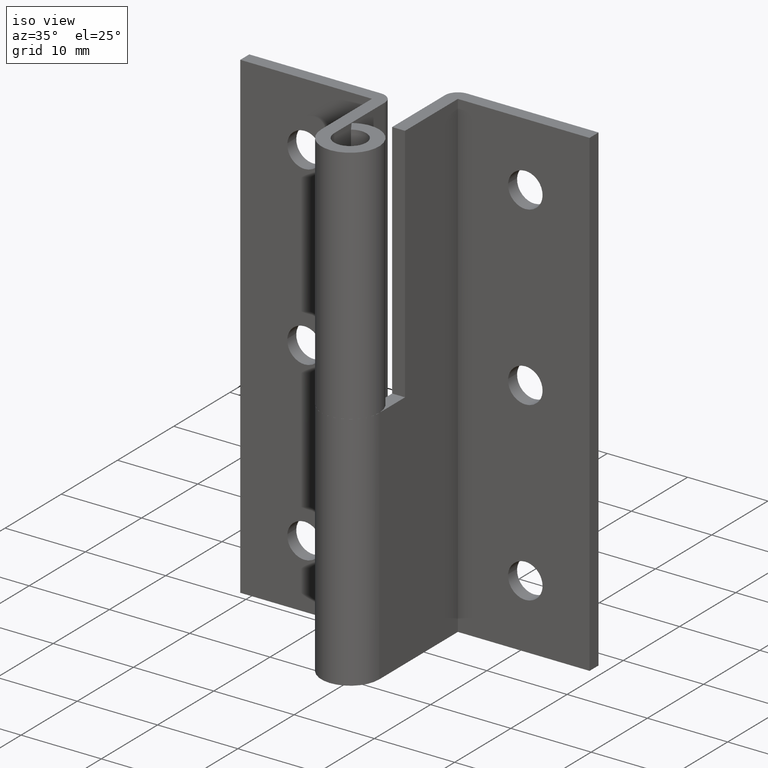
[diagram: clean part render]
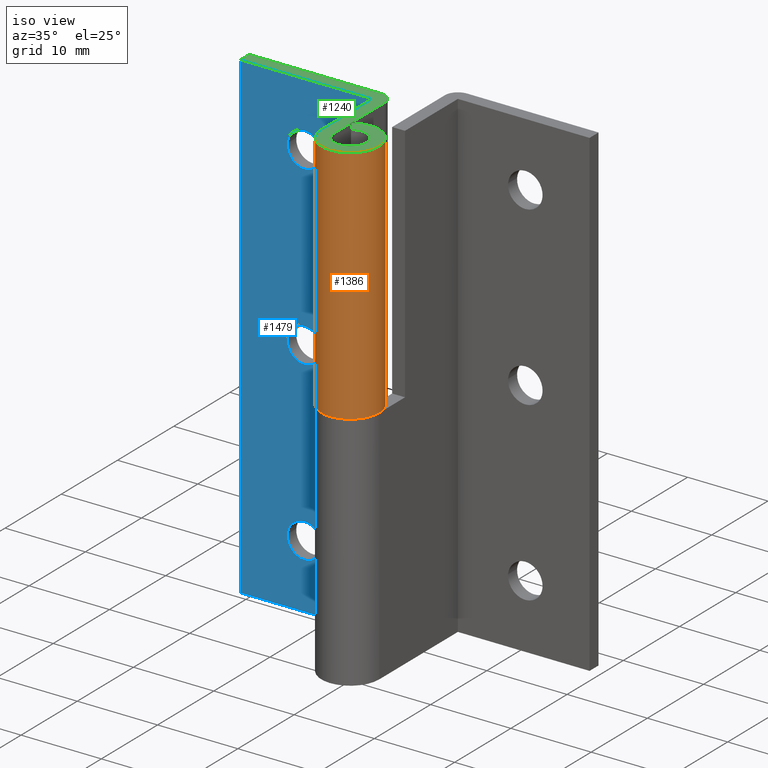
[diagram: same view with three faces highlighted in distinct colors, each labeled with its STEP entity id]
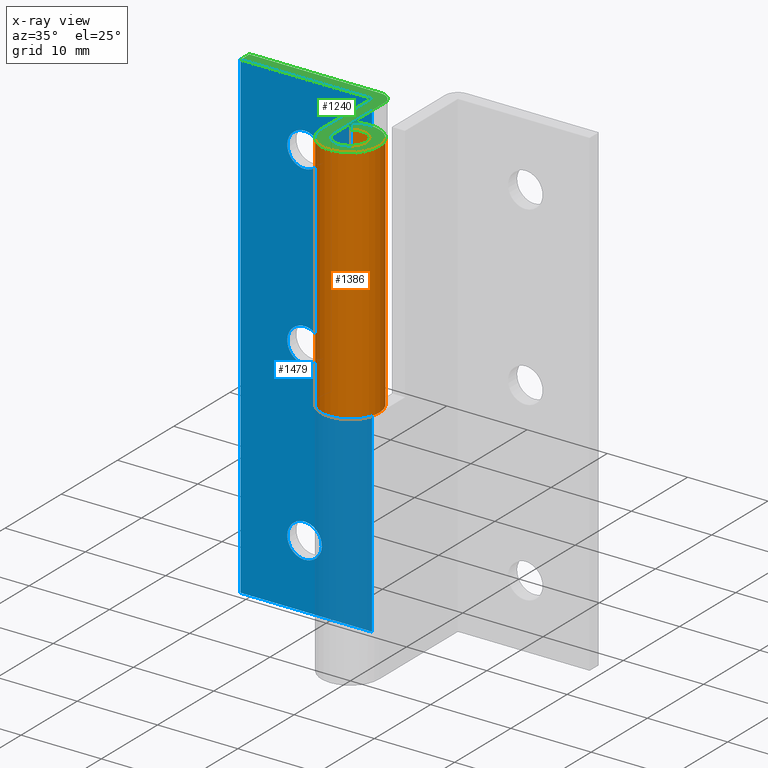
[diagram: x-ray of the same camera — body ghosted, the three highlighted faces saturated]
A machine part, iso view with three faces highlighted in distinct colors.
The next image is the same camera in x-ray (body ghosted, the three faces saturated) — at least one of them is partly hidden behind the body in this view.
Their STEP definitions:

[orange] entity #1386 — the highlighted face is a freeform B-spline surface patch.
#1113=CARTESIAN_POINT('',(-1.949999999999900,3.026136150274865,29.999992000000049));
#1114=VERTEX_POINT('',#1113);
#1120=CARTESIAN_POINT('',(-3.599998000000000,-0.003794732665980,29.999991999999999));
#1121=VERTEX_POINT('',#1120);
#1122=CARTESIAN_POINT('',(-3.599997999999999,-0.003794732665980,29.999992000000049));
#1123=CARTESIAN_POINT('',(-3.597050035456123,-2.800478292793362,29.999992000000052));
#1124=CARTESIAN_POINT('',(-0.886481411687195,-3.489147561616315,29.999992000000049));
#1125=CARTESIAN_POINT('',(1.824087212081733,-4.177816830439268,29.999992000000052));
#1126=CARTESIAN_POINT('',(3.161603981976616,-1.721702721479410,29.999992000000049));
#1127=CARTESIAN_POINT('',(4.499120751871498,0.734411387480448,29.999992000000052));
#1128=CARTESIAN_POINT('',(2.449997865370639,2.637709320542980,29.999992000000049));
#1129=CARTESIAN_POINT('',(0.400874978869779,4.541007253605512,29.999992000000052));
#1130=CARTESIAN_POINT('',(-1.949999999999900,3.026136150274867,29.999992000000049));
#1138=(BOUNDED_CURVE()B_SPLINE_CURVE(2,(#1122,#1123,#1124,#1125,#1126,#1127,#1128,#1129,#1130),.UNSPECIFIED.,.F.,.U.)B_SPLINE_CURVE_WITH_KNOTS((3,2,2,2,3),(0.0,0.250000000000000,0.500000000000000,0.750000000000000,1.0),.UNSPECIFIED.)CURVE()GEOMETRIC_REPRESENTATION_ITEM()RATIONAL_B_SPLINE_CURVE((1.0,0.789704480868730,1.0,0.789704480868730,1.0,0.789704480868730,1.0,0.789704480868730,1.0))REPRESENTATION_ITEM(''));
#1139=EDGE_CURVE('',#1121,#1114,#1138,.T.);
#1184=CARTESIAN_POINT('',(-3.599998000000000,-0.003794732665980,59.999991999999999));
#1185=VERTEX_POINT('',#1184);
#1191=CARTESIAN_POINT('',(-1.949999999999900,3.026136150274865,59.999991999999999));
#1192=VERTEX_POINT('',#1191);
#1193=CARTESIAN_POINT('',(-3.599997999999999,-0.003794732665980,59.999991999999999));
#1194=CARTESIAN_POINT('',(-3.597050035456123,-2.800478292793362,59.999991999999999));
#1195=CARTESIAN_POINT('',(-0.886481411687195,-3.489147561616315,59.999991999999999));
#1196=CARTESIAN_POINT('',(1.824087212081733,-4.177816830439268,59.999991999999999));
#1197=CARTESIAN_POINT('',(3.161603981976616,-1.721702721479410,59.999991999999999));
#1198=CARTESIAN_POINT('',(4.499120751871498,0.734411387480448,59.999991999999999));
#1199=CARTESIAN_POINT('',(2.449997865370639,2.637709320542980,59.999991999999999));
#1200=CARTESIAN_POINT('',(0.400874978869779,4.541007253605512,59.999991999999999));
#1201=CARTESIAN_POINT('',(-1.949999999999900,3.026136150274867,59.999991999999999));
#1209=(BOUNDED_CURVE()B_SPLINE_CURVE(2,(#1193,#1194,#1195,#1196,#1197,#1198,#1199,#1200,#1201),.UNSPECIFIED.,.F.,.U.)B_SPLINE_CURVE_WITH_KNOTS((3,2,2,2,3),(0.0,0.250000000000000,0.500000000000000,0.750000000000000,1.0),.UNSPECIFIED.)CURVE()GEOMETRIC_REPRESENTATION_ITEM()RATIONAL_B_SPLINE_CURVE((1.0,0.789704480868730,1.0,0.789704480868730,1.0,0.789704480868730,1.0,0.789704480868730,1.0))REPRESENTATION_ITEM(''));
#1210=EDGE_CURVE('',#1185,#1192,#1209,.T.);
#1338=CARTESIAN_POINT('',(-3.599998000000000,-0.003794732665980,29.999991999999999));
#1339=CARTESIAN_POINT('',(-3.599998000000000,-0.003794732665980,59.999991999999999));
#1340=QUASI_UNIFORM_CURVE('',1,(#1338,#1339),.UNSPECIFIED.,.F.,.U.);
#1341=EDGE_CURVE('',#1121,#1185,#1340,.T.);
#1354=CARTESIAN_POINT('',(-2.080142237043605,2.938198133834276,29.249991999999999));
#1355=CARTESIAN_POINT('',(-2.080142237043605,2.938198133834276,60.768742000000003));
#1356=CARTESIAN_POINT('',(1.591704313728566,5.537737970937335,29.249992000000006));
#1357=CARTESIAN_POINT('',(1.591704313728566,5.537737970937335,60.768741999999996));
#1358=CARTESIAN_POINT('',(3.322819818743821,1.385232273722813,29.249991999999999));
#1359=CARTESIAN_POINT('',(3.322819818743821,1.385232273722813,60.768742000000003));
#1360=CARTESIAN_POINT('',(5.053935323759077,-2.767273423491711,29.249992000000006));
#1361=CARTESIAN_POINT('',(5.053935323759077,-2.767273423491711,60.768741999999996));
#1362=CARTESIAN_POINT('',(0.622895520486722,-3.545701788159514,29.249991999999999));
#1363=CARTESIAN_POINT('',(0.622895520486722,-3.545701788159514,60.768742000000003));
#1364=CARTESIAN_POINT('',(-3.808144282785634,-4.324130152827316,29.249992000000006));
#1365=CARTESIAN_POINT('',(-3.808144282785634,-4.324130152827316,60.768741999999996));
#1366=CARTESIAN_POINT('',(-3.595995164234094,0.169760946053597,29.249991999999999));
#1367=CARTESIAN_POINT('',(-3.595995164234094,0.169760946053597,60.768742000000003));
#1375=(BOUNDED_SURFACE()B_SPLINE_SURFACE(1,2,((#1354,#1356,#1358,#1360,#1362,#1364,#1366),(#1355,#1357,#1359,#1361,#1363,#1365,#1367)),.UNSPECIFIED.,.F.,.F.,.U.)B_SPLINE_SURFACE_WITH_KNOTS((2,2),(3,2,2,3),(0.0,31.518750000000011),(0.0,6.919936892402060,13.839873784804119,20.759810677206179),.UNSPECIFIED.)GEOMETRIC_REPRESENTATION_ITEM()RATIONAL_B_SPLINE_SURFACE(((1.0,0.624788514543960,1.0,0.624788514543960,1.0,0.624788514543960,1.0),(1.0,0.624788514543960,1.0,0.624788514543960,1.0,0.624788514543960,1.0)))REPRESENTATION_ITEM('')SURFACE());
#1376=ORIENTED_EDGE('',*,*,#1341,.F.);
#1377=ORIENTED_EDGE('',*,*,#1139,.T.);
#1378=CARTESIAN_POINT('',(-1.949999999999900,3.026136150274865,29.999992000000049));
#1379=CARTESIAN_POINT('',(-1.949999999999900,3.026136150274865,59.999991999999999));
#1380=QUASI_UNIFORM_CURVE('',1,(#1378,#1379),.UNSPECIFIED.,.F.,.U.);
#1381=EDGE_CURVE('',#1114,#1192,#1380,.T.);
#1382=ORIENTED_EDGE('',*,*,#1381,.T.);
#1383=ORIENTED_EDGE('',*,*,#1210,.F.);
#1384=EDGE_LOOP('',(#1376,#1377,#1382,#1383));
#1385=FACE_OUTER_BOUND('',#1384,.T.);
#1386=ADVANCED_FACE('',(#1385),#1375,.T.);

[blue] entity #1479 — the highlighted face is a freeform B-spline surface patch.
#489=CARTESIAN_POINT('',(-9.856627732478707,9.0,51.831304944122479));
#490=VERTEX_POINT('',#489);
#496=CARTESIAN_POINT('',(-12.0,9.0,54.149991999999997));
#497=VERTEX_POINT('',#496);
#498=CARTESIAN_POINT('',(-9.856627732478707,9.0,51.831304944122479));
#499=CARTESIAN_POINT('',(-9.850000000000001,9.0,51.915518269870567));
#500=CARTESIAN_POINT('',(-9.850000000000001,9.0,51.999991999999999));
#501=CARTESIAN_POINT('',(-9.850000000000001,9.0,54.149991999999997));
#502=CARTESIAN_POINT('',(-12.0,9.0,54.149991999999997));
#510=(BOUNDED_CURVE()B_SPLINE_CURVE(2,(#498,#499,#500,#501,#502),.UNSPECIFIED.,.F.,.U.)B_SPLINE_CURVE_WITH_KNOTS((3,2,3),(0.736331300622745,0.750000000000000,1.0),.UNSPECIFIED.)CURVE()GEOMETRIC_REPRESENTATION_ITEM()RATIONAL_B_SPLINE_CURVE((0.969723356150901,0.983986122569610,1.0,0.707106781186547,1.0))REPRESENTATION_ITEM(''));
#511=EDGE_CURVE('',#490,#497,#510,.T.);
#513=CARTESIAN_POINT('',(-14.143372267521290,9.0,52.168679055877519));
#514=VERTEX_POINT('',#513);
#515=CARTESIAN_POINT('',(-12.0,9.0,54.149991999999997));
#516=CARTESIAN_POINT('',(-13.987439556948601,9.000000000000002,54.149992000000005));
#517=CARTESIAN_POINT('',(-14.143372267521293,9.0,52.168679055877519));
#525=(BOUNDED_CURVE()B_SPLINE_CURVE(2,(#515,#516,#517),.UNSPECIFIED.,.F.,.U.)B_SPLINE_CURVE_WITH_KNOTS((3,3),(0.0,0.236331300622745),.UNSPECIFIED.)CURVE()GEOMETRIC_REPRESENTATION_ITEM()RATIONAL_B_SPLINE_CURVE((1.0,0.723120658616938,0.969723356150901))REPRESENTATION_ITEM(''));
#526=EDGE_CURVE('',#497,#514,#525,.T.);
#572=CARTESIAN_POINT('',(-12.0,9.0,49.849992000000000));
#573=VERTEX_POINT('',#572);
#574=CARTESIAN_POINT('',(-14.143372267521293,9.0,52.168679055877519));
#575=CARTESIAN_POINT('',(-14.150000000000000,9.0,52.084465730129430));
#576=CARTESIAN_POINT('',(-14.150000000000000,9.0,51.999991999999999));
#577=CARTESIAN_POINT('',(-14.150000000000006,9.0,49.849992000000000));
#578=CARTESIAN_POINT('',(-12.0,9.0,49.849992000000000));
#586=(BOUNDED_CURVE()B_SPLINE_CURVE(2,(#574,#575,#576,#577,#578),.UNSPECIFIED.,.F.,.U.)B_SPLINE_CURVE_WITH_KNOTS((3,2,3),(0.236331300622745,0.250000000000000,0.500000000000000),.UNSPECIFIED.)CURVE()GEOMETRIC_REPRESENTATION_ITEM()RATIONAL_B_SPLINE_CURVE((0.969723356150901,0.983986122569610,1.0,0.707106781186547,1.0))REPRESENTATION_ITEM(''));
#587=EDGE_CURVE('',#514,#573,#586,.T.);
#589=CARTESIAN_POINT('',(-12.0,9.0,49.849992000000000));
#590=CARTESIAN_POINT('',(-10.012560443051404,9.000000000000002,49.849991999999993));
#591=CARTESIAN_POINT('',(-9.856627732478707,9.0,51.831304944122493));
#599=(BOUNDED_CURVE()B_SPLINE_CURVE(2,(#589,#590,#591),.UNSPECIFIED.,.F.,.U.)B_SPLINE_CURVE_WITH_KNOTS((3,3),(0.500000000000000,0.736331300622745),.UNSPECIFIED.)CURVE()GEOMETRIC_REPRESENTATION_ITEM()RATIONAL_B_SPLINE_CURVE((1.0,0.723120658616938,0.969723356150901))REPRESENTATION_ITEM(''));
#600=EDGE_CURVE('',#573,#490,#599,.T.);
#671=CARTESIAN_POINT('',(-9.856627732478707,9.0,29.831304944122479));
#672=VERTEX_POINT('',#671);
#678=CARTESIAN_POINT('',(-12.0,9.0,32.149992000000012));
#679=VERTEX_POINT('',#678);
#680=CARTESIAN_POINT('',(-9.856627732478707,9.0,29.831304944122476));
#681=CARTESIAN_POINT('',(-9.850000000000001,8.999999999999998,29.915518269870564));
#682=CARTESIAN_POINT('',(-9.850000000000001,9.0,29.999991999999999));
#683=CARTESIAN_POINT('',(-9.850000000000001,9.0,32.149991999999997));
#684=CARTESIAN_POINT('',(-12.0,9.0,32.149992000000012));
#692=(BOUNDED_CURVE()B_SPLINE_CURVE(2,(#680,#681,#682,#683,#684),.UNSPECIFIED.,.F.,.U.)B_SPLINE_CURVE_WITH_KNOTS((3,2,3),(0.736331300622745,0.750000000000000,1.0),.UNSPECIFIED.)CURVE()GEOMETRIC_REPRESENTATION_ITEM()RATIONAL_B_SPLINE_CURVE((0.969723356150902,0.983986122569610,1.0,0.707106781186547,1.0))REPRESENTATION_ITEM(''));
#693=EDGE_CURVE('',#672,#679,#692,.T.);
#695=CARTESIAN_POINT('',(-14.143372267521290,9.0,30.168679055877512));
#696=VERTEX_POINT('',#695);
#697=CARTESIAN_POINT('',(-12.0,9.0,32.149992000000012));
#698=CARTESIAN_POINT('',(-13.987439556948599,9.0,32.149992000000005));
#699=CARTESIAN_POINT('',(-14.143372267521290,9.0,30.168679055877512));
#707=(BOUNDED_CURVE()B_SPLINE_CURVE(2,(#697,#698,#699),.UNSPECIFIED.,.F.,.U.)B_SPLINE_CURVE_WITH_KNOTS((3,3),(0.0,0.236331300622746),.UNSPECIFIED.)CURVE()GEOMETRIC_REPRESENTATION_ITEM()RATIONAL_B_SPLINE_CURVE((1.0,0.723120658616937,0.969723356150902))REPRESENTATION_ITEM(''));
#708=EDGE_CURVE('',#679,#696,#707,.T.);
#754=CARTESIAN_POINT('',(-12.0,9.0,27.849992000000000));
#755=VERTEX_POINT('',#754);
#756=CARTESIAN_POINT('',(-14.143372267521295,9.0,30.168679055877512));
#757=CARTESIAN_POINT('',(-14.150000000000002,8.999999999999998,30.084465730129427));
#758=CARTESIAN_POINT('',(-14.150000000000000,9.0,29.999991999999999));
#759=CARTESIAN_POINT('',(-14.150000000000006,9.0,27.849992000000007));
#760=CARTESIAN_POINT('',(-12.0,9.0,27.849992000000000));
#768=(BOUNDED_CURVE()B_SPLINE_CURVE(2,(#756,#757,#758,#759,#760),.UNSPECIFIED.,.F.,.U.)B_SPLINE_CURVE_WITH_KNOTS((3,2,3),(0.236331300622746,0.250000000000000,0.500000000000000),.UNSPECIFIED.)CURVE()GEOMETRIC_REPRESENTATION_ITEM()RATIONAL_B_SPLINE_CURVE((0.969723356150902,0.983986122569610,1.0,0.707106781186547,1.0))REPRESENTATION_ITEM(''));
#769=EDGE_CURVE('',#696,#755,#768,.T.);
#771=CARTESIAN_POINT('',(-12.0,9.0,27.849992000000000));
#772=CARTESIAN_POINT('',(-10.012560443051404,9.000000000000002,27.849992000000000));
#773=CARTESIAN_POINT('',(-9.856627732478707,9.0,29.831304944122476));
#781=(BOUNDED_CURVE()B_SPLINE_CURVE(2,(#771,#772,#773),.UNSPECIFIED.,.F.,.U.)B_SPLINE_CURVE_WITH_KNOTS((3,3),(0.500000000000000,0.736331300622745),.UNSPECIFIED.)CURVE()GEOMETRIC_REPRESENTATION_ITEM()RATIONAL_B_SPLINE_CURVE((1.0,0.723120658616938,0.969723356150901))REPRESENTATION_ITEM(''));
#782=EDGE_CURVE('',#755,#672,#781,.T.);
#853=CARTESIAN_POINT('',(-9.856627732478707,9.0,7.831312944122485));
#854=VERTEX_POINT('',#853);
#860=CARTESIAN_POINT('',(-12.0,9.0,10.150000000000000));
#861=VERTEX_POINT('',#860);
#862=CARTESIAN_POINT('',(-9.856627732478707,9.0,7.831312944122485));
#863=CARTESIAN_POINT('',(-9.850000000000003,9.000000000000002,7.915526269870572));
#864=CARTESIAN_POINT('',(-9.850000000000001,9.0,8.0));
#865=CARTESIAN_POINT('',(-9.850000000000001,9.0,10.149999999999999));
#866=CARTESIAN_POINT('',(-12.0,9.0,10.150000000000000));
#874=(BOUNDED_CURVE()B_SPLINE_CURVE(2,(#862,#863,#864,#865,#866),.UNSPECIFIED.,.F.,.U.)B_SPLINE_CURVE_WITH_KNOTS((3,2,3),(0.736331300622746,0.750000000000000,1.0),.UNSPECIFIED.)CURVE()GEOMETRIC_REPRESENTATION_ITEM()RATIONAL_B_SPLINE_CURVE((0.969723356150902,0.983986122569610,1.0,0.707106781186547,1.0))REPRESENTATION_ITEM(''));
#875=EDGE_CURVE('',#854,#861,#874,.T.);
#877=CARTESIAN_POINT('',(-14.143372267521290,9.0,8.168687055877516));
#878=VERTEX_POINT('',#877);
#879=CARTESIAN_POINT('',(-12.0,9.0,10.150000000000000));
#880=CARTESIAN_POINT('',(-13.987439556948599,9.0,10.149999999999999));
#881=CARTESIAN_POINT('',(-14.143372267521290,9.0,8.168687055877516));
#889=(BOUNDED_CURVE()B_SPLINE_CURVE(2,(#879,#880,#881),.UNSPECIFIED.,.F.,.U.)B_SPLINE_CURVE_WITH_KNOTS((3,3),(0.0,0.236331300622746),.UNSPECIFIED.)CURVE()GEOMETRIC_REPRESENTATION_ITEM()RATIONAL_B_SPLINE_CURVE((1.0,0.723120658616937,0.969723356150902))REPRESENTATION_ITEM(''));
#890=EDGE_CURVE('',#861,#878,#889,.T.);
#936=CARTESIAN_POINT('',(-12.0,9.0,5.850000000000001));
#937=VERTEX_POINT('',#936);
#938=CARTESIAN_POINT('',(-14.143372267521290,9.0,8.168687055877516));
#939=CARTESIAN_POINT('',(-14.150000000000004,9.0,8.084473730129428));
#940=CARTESIAN_POINT('',(-14.150000000000000,9.0,8.0));
#941=CARTESIAN_POINT('',(-14.150000000000006,9.0,5.850000000000001));
#942=CARTESIAN_POINT('',(-12.0,9.0,5.850000000000001));
#950=(BOUNDED_CURVE()B_SPLINE_CURVE(2,(#938,#939,#940,#941,#942),.UNSPECIFIED.,.F.,.U.)B_SPLINE_CURVE_WITH_KNOTS((3,2,3),(0.236331300622746,0.250000000000000,0.500000000000000),.UNSPECIFIED.)CURVE()GEOMETRIC_REPRESENTATION_ITEM()RATIONAL_B_SPLINE_CURVE((0.969723356150902,0.983986122569610,1.0,0.707106781186547,1.0))REPRESENTATION_ITEM(''));
#951=EDGE_CURVE('',#878,#937,#950,.T.);
#953=CARTESIAN_POINT('',(-12.0,9.0,5.850000000000001));
#954=CARTESIAN_POINT('',(-10.012560443051404,9.000000000000002,5.850000000000000));
#955=CARTESIAN_POINT('',(-9.856627732478707,9.0,7.831312944122485));
#963=(BOUNDED_CURVE()B_SPLINE_CURVE(2,(#953,#954,#955),.UNSPECIFIED.,.F.,.U.)B_SPLINE_CURVE_WITH_KNOTS((3,3),(0.500000000000000,0.736331300622745),.UNSPECIFIED.)CURVE()GEOMETRIC_REPRESENTATION_ITEM()RATIONAL_B_SPLINE_CURVE((1.0,0.723120658616938,0.969723356150901))REPRESENTATION_ITEM(''));
#964=EDGE_CURVE('',#937,#854,#963,.T.);
#1170=CARTESIAN_POINT('',(-20.0,9.0,59.999991999999999));
#1171=VERTEX_POINT('',#1170);
#1177=CARTESIAN_POINT('',(-3.599998000000000,9.0,59.999991999999999));
#1178=VERTEX_POINT('',#1177);
#1179=CARTESIAN_POINT('',(-3.599998000000000,9.0,59.999991999999999));
#1180=CARTESIAN_POINT('',(-20.0,9.0,59.999991999999999));
#1181=QUASI_UNIFORM_CURVE('',1,(#1179,#1180),.UNSPECIFIED.,.F.,.U.);
#1182=EDGE_CURVE('',#1178,#1171,#1181,.T.);
#1254=CARTESIAN_POINT('',(-20.0,9.0,0.0));
#1255=VERTEX_POINT('',#1254);
#1261=CARTESIAN_POINT('',(-20.0,9.0,0.0));
#1262=CARTESIAN_POINT('',(-20.0,9.0,59.999991999999999));
#1263=QUASI_UNIFORM_CURVE('',1,(#1261,#1262),.UNSPECIFIED.,.F.,.U.);
#1264=EDGE_CURVE('',#1255,#1171,#1263,.T.);
#1316=CARTESIAN_POINT('',(-3.599998000000000,9.0,0.0));
#1317=VERTEX_POINT('',#1316);
#1323=CARTESIAN_POINT('',(-3.599998000000000,9.0,0.0));
#1324=CARTESIAN_POINT('',(-20.0,9.0,0.0));
#1325=QUASI_UNIFORM_CURVE('',1,(#1323,#1324),.UNSPECIFIED.,.F.,.U.);
#1326=EDGE_CURVE('',#1317,#1255,#1325,.T.);
#1344=CARTESIAN_POINT('',(-3.599998000000000,9.0,0.0));
#1345=CARTESIAN_POINT('',(-3.599998000000000,9.0,59.999991999999999));
#1346=QUASI_UNIFORM_CURVE('',1,(#1344,#1345),.UNSPECIFIED.,.F.,.U.);
#1347=EDGE_CURVE('',#1317,#1178,#1346,.T.);
#1450=CARTESIAN_POINT('',(-20.819180068113610,9.0,-2.996999484108375));
#1451=CARTESIAN_POINT('',(-20.819180068113621,9.0,62.996993093433581));
#1452=CARTESIAN_POINT('',(-2.780817492004054,9.0,-2.996999484108375));
#1453=CARTESIAN_POINT('',(-2.780817492004054,9.0,62.996993093433581));
#1454=B_SPLINE_SURFACE_WITH_KNOTS('',1,1,((#1450,#1452),(#1451,#1453)),.UNSPECIFIED.,.F.,.F.,.U.,(2,2),(2,2),(0.0,65.993992577541960),(0.0,18.038362576109559),.UNSPECIFIED.);
#1455=ORIENTED_EDGE('',*,*,#1182,.T.);
#1456=ORIENTED_EDGE('',*,*,#1264,.F.);
#1457=ORIENTED_EDGE('',*,*,#1326,.F.);
#1458=ORIENTED_EDGE('',*,*,#1347,.T.);
#1459=EDGE_LOOP('',(#1455,#1456,#1457,#1458));
#1460=FACE_OUTER_BOUND('',#1459,.T.);
#1461=ORIENTED_EDGE('',*,*,#964,.F.);
#1462=ORIENTED_EDGE('',*,*,#951,.F.);
#1463=ORIENTED_EDGE('',*,*,#890,.F.);
#1464=ORIENTED_EDGE('',*,*,#875,.F.);
#1465=EDGE_LOOP('',(#1461,#1462,#1463,#1464));
#1466=FACE_BOUND('',#1465,.T.);
#1467=ORIENTED_EDGE('',*,*,#782,.F.);
#1468=ORIENTED_EDGE('',*,*,#769,.F.);
#1469=ORIENTED_EDGE('',*,*,#708,.F.);
#1470=ORIENTED_EDGE('',*,*,#693,.F.);
#1471=EDGE_LOOP('',(#1467,#1468,#1469,#1470));
#1472=FACE_BOUND('',#1471,.T.);
#1473=ORIENTED_EDGE('',*,*,#600,.F.);
#1474=ORIENTED_EDGE('',*,*,#587,.F.);
#1475=ORIENTED_EDGE('',*,*,#526,.F.);
#1476=ORIENTED_EDGE('',*,*,#511,.F.);
#1477=EDGE_LOOP('',(#1473,#1474,#1475,#1476));
#1478=FACE_BOUND('',#1477,.T.);
#1479=ADVANCED_FACE('',(#1460,#1466,#1472,#1478),#1454,.F.);

[green] entity #1240 — the highlighted face is a freeform B-spline surface patch.
#1014=CARTESIAN_POINT('',(-3.599999999999900,10.600006000000100,59.999991999999899));
#1015=VERTEX_POINT('',#1014);
#1021=CARTESIAN_POINT('',(-1.999999999999900,9.000005999999999,59.999991999999899));
#1022=VERTEX_POINT('',#1021);
#1023=CARTESIAN_POINT('',(-1.999999999999900,9.000005999999999,59.999991999999999));
#1024=CARTESIAN_POINT('',(-1.999999999999901,10.600005999999999,59.999991999999992));
#1025=CARTESIAN_POINT('',(-3.599999999999900,10.600006000000100,59.999991999999899));
#1033=(BOUNDED_CURVE()B_SPLINE_CURVE(2,(#1023,#1024,#1025),.UNSPECIFIED.,.F.,.U.)CURVE()GEOMETRIC_REPRESENTATION_ITEM()QUASI_UNIFORM_CURVE()RATIONAL_B_SPLINE_CURVE((1.0,0.707106781186548,1.0))REPRESENTATION_ITEM(''));
#1034=EDGE_CURVE('',#1022,#1015,#1033,.T.);
#1150=CARTESIAN_POINT('',(-21.178740591727649,11.309275148580999,59.999991999999899));
#1151=CARTESIAN_POINT('',(4.777152385165724,11.309275148580999,59.999991999999899));
#1152=CARTESIAN_POINT('',(-21.178740591727649,-4.308843839064326,59.999991999999899));
#1153=CARTESIAN_POINT('',(4.777152385165724,-4.308843839064326,59.999991999999899));
#1154=B_SPLINE_SURFACE_WITH_KNOTS('',1,1,((#1150,#1152),(#1151,#1153)),.UNSPECIFIED.,.F.,.F.,.U.,(2,2),(2,2),(0.0,25.955892976893370),(0.0,15.618118987645330),.UNSPECIFIED.);
#1155=CARTESIAN_POINT('',(-1.999999999999900,0.0,59.999991999999999));
#1156=VERTEX_POINT('',#1155);
#1157=CARTESIAN_POINT('',(-1.999999999999900,9.000005999999999,59.999991999999899));
#1158=CARTESIAN_POINT('',(-1.999999999999900,0.0,59.999991999999999));
#1159=QUASI_UNIFORM_CURVE('',1,(#1157,#1158),.UNSPECIFIED.,.F.,.U.);
#1160=EDGE_CURVE('',#1022,#1156,#1159,.T.);
#1161=ORIENTED_EDGE('',*,*,#1160,.F.);
#1162=ORIENTED_EDGE('',*,*,#1034,.T.);
#1163=CARTESIAN_POINT('',(-20.0,10.600006000000100,59.999991999999999));
#1164=VERTEX_POINT('',#1163);
#1165=CARTESIAN_POINT('',(-20.0,10.600006000000100,59.999991999999999));
#1166=CARTESIAN_POINT('',(-3.599999999999900,10.600006000000100,59.999991999999899));
#1167=QUASI_UNIFORM_CURVE('',1,(#1165,#1166),.UNSPECIFIED.,.F.,.U.);
#1168=EDGE_CURVE('',#1164,#1015,#1167,.T.);
#1169=ORIENTED_EDGE('',*,*,#1168,.F.);
#1170=CARTESIAN_POINT('',(-20.0,9.0,59.999991999999999));
#1171=VERTEX_POINT('',#1170);
#1172=CARTESIAN_POINT('',(-20.0,9.0,59.999991999999999));
#1173=CARTESIAN_POINT('',(-20.0,10.600006000000100,59.999991999999999));
#1174=QUASI_UNIFORM_CURVE('',1,(#1172,#1173),.UNSPECIFIED.,.F.,.U.);
#1175=EDGE_CURVE('',#1171,#1164,#1174,.T.);
#1176=ORIENTED_EDGE('',*,*,#1175,.F.);
#1177=CARTESIAN_POINT('',(-3.599998000000000,9.0,59.999991999999999));
#1178=VERTEX_POINT('',#1177);
#1179=CARTESIAN_POINT('',(-3.599998000000000,9.0,59.999991999999999));
#1180=CARTESIAN_POINT('',(-20.0,9.0,59.999991999999999));
#1181=QUASI_UNIFORM_CURVE('',1,(#1179,#1180),.UNSPECIFIED.,.F.,.U.);
#1182=EDGE_CURVE('',#1178,#1171,#1181,.T.);
#1183=ORIENTED_EDGE('',*,*,#1182,.F.);
#1184=CARTESIAN_POINT('',(-3.599998000000000,-0.003794732665980,59.999991999999999));
#1185=VERTEX_POINT('',#1184);
#1186=CARTESIAN_POINT('',(-3.599998000000000,-0.003794732665980,59.999991999999999));
#1187=CARTESIAN_POINT('',(-3.599998000000000,9.0,59.999991999999999));
#1188=QUASI_UNIFORM_CURVE('',1,(#1186,#1187),.UNSPECIFIED.,.F.,.U.);
#1189=EDGE_CURVE('',#1185,#1178,#1188,.T.);
#1190=ORIENTED_EDGE('',*,*,#1189,.F.);
#1191=CARTESIAN_POINT('',(-1.949999999999900,3.026136150274865,59.999991999999999));
#1192=VERTEX_POINT('',#1191);
#1193=CARTESIAN_POINT('',(-3.599997999999999,-0.003794732665980,59.999991999999999));
#1194=CARTESIAN_POINT('',(-3.597050035456123,-2.800478292793362,59.999991999999999));
#1195=CARTESIAN_POINT('',(-0.886481411687195,-3.489147561616315,59.999991999999999));
#1196=CARTESIAN_POINT('',(1.824087212081733,-4.177816830439268,59.999991999999999));
#1197=CARTESIAN_POINT('',(3.161603981976616,-1.721702721479410,59.999991999999999));
#1198=CARTESIAN_POINT('',(4.499120751871498,0.734411387480448,59.999991999999999));
#1199=CARTESIAN_POINT('',(2.449997865370639,2.637709320542980,59.999991999999999));
#1200=CARTESIAN_POINT('',(0.400874978869779,4.541007253605512,59.999991999999999));
#1201=CARTESIAN_POINT('',(-1.949999999999900,3.026136150274867,59.999991999999999));
#1209=(BOUNDED_CURVE()B_SPLINE_CURVE(2,(#1193,#1194,#1195,#1196,#1197,#1198,#1199,#1200,#1201),.UNSPECIFIED.,.F.,.U.)B_SPLINE_CURVE_WITH_KNOTS((3,2,2,2,3),(0.0,0.250000000000000,0.500000000000000,0.750000000000000,1.0),.UNSPECIFIED.)CURVE()GEOMETRIC_REPRESENTATION_ITEM()RATIONAL_B_SPLINE_CURVE((1.0,0.789704480868730,1.0,0.789704480868730,1.0,0.789704480868730,1.0,0.789704480868730,1.0))REPRESENTATION_ITEM(''));
#1210=EDGE_CURVE('',#1185,#1192,#1209,.T.);
#1211=ORIENTED_EDGE('',*,*,#1210,.T.);
#1212=CARTESIAN_POINT('',(-1.083333333333280,1.681186750152705,59.999991999999999));
#1213=VERTEX_POINT('',#1212);
#1214=CARTESIAN_POINT('',(-1.083333333333280,1.681186750152705,59.999991999999999));
#1215=CARTESIAN_POINT('',(-1.949999999999900,3.026136150274865,59.999991999999999));
#1216=QUASI_UNIFORM_CURVE('',1,(#1214,#1215),.UNSPECIFIED.,.F.,.U.);
#1217=EDGE_CURVE('',#1213,#1192,#1216,.T.);
#1218=ORIENTED_EDGE('',*,*,#1217,.F.);
#1219=CARTESIAN_POINT('',(-2.0,0.0,59.999991999999999));
#1220=CARTESIAN_POINT('',(-2.000000000000000,-1.554136556548011,59.999991999999999));
#1221=CARTESIAN_POINT('',(-0.494021971027496,-1.938025359003878,59.999991999999999));
#1222=CARTESIAN_POINT('',(1.011956057945008,-2.321914161459744,59.999991999999999));
#1223=CARTESIAN_POINT('',(1.755942292142108,-0.957427107756366,59.999991999999999));
#1224=CARTESIAN_POINT('',(2.499928526339208,0.407059945947011,59.999991999999999));
#1225=CARTESIAN_POINT('',(1.361496043202080,1.465035332114922,59.999991999999999));
#1226=CARTESIAN_POINT('',(0.223063560064952,2.523010718282833,59.999991999999999));
#1227=CARTESIAN_POINT('',(-1.083333333333279,1.681186750152703,59.999991999999999));
#1235=(BOUNDED_CURVE()B_SPLINE_CURVE(2,(#1219,#1220,#1221,#1222,#1223,#1224,#1225,#1226,#1227),.UNSPECIFIED.,.F.,.U.)B_SPLINE_CURVE_WITH_KNOTS((3,2,2,2,3),(0.0,0.250000000000000,0.500000000000000,0.750000000000000,1.0),.UNSPECIFIED.)CURVE()GEOMETRIC_REPRESENTATION_ITEM()RATIONAL_B_SPLINE_CURVE((1.0,0.789623639943026,1.0,0.789623639943026,1.0,0.789623639943026,1.0,0.789623639943026,1.0))REPRESENTATION_ITEM(''));
#1236=EDGE_CURVE('',#1156,#1213,#1235,.T.);
#1237=ORIENTED_EDGE('',*,*,#1236,.F.);
#1238=EDGE_LOOP('',(#1161,#1162,#1169,#1176,#1183,#1190,#1211,#1218,#1237));
#1239=FACE_OUTER_BOUND('',#1238,.T.);
#1240=ADVANCED_FACE('',(#1239),#1154,.F.);